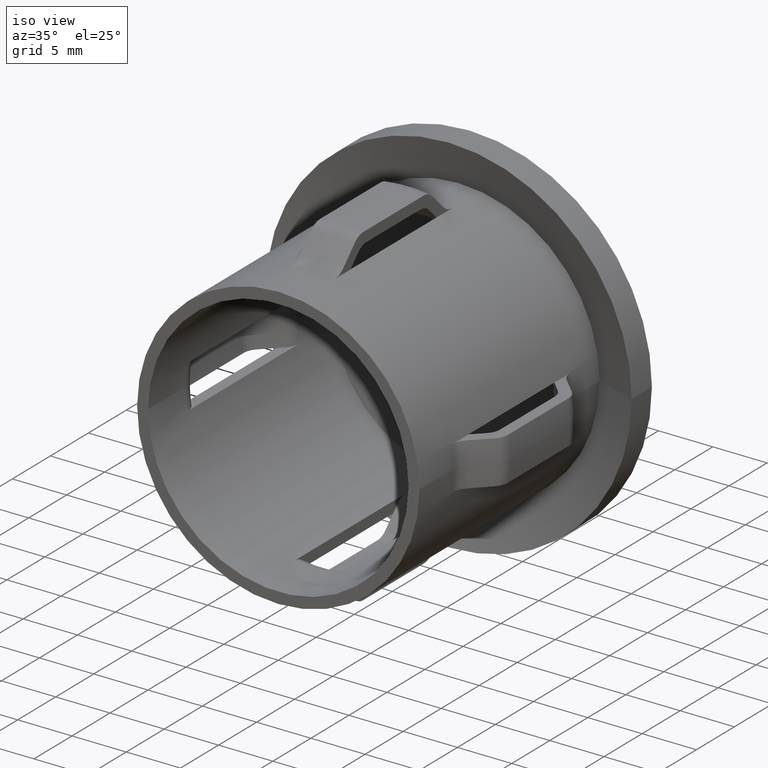
[diagram: clean part render]
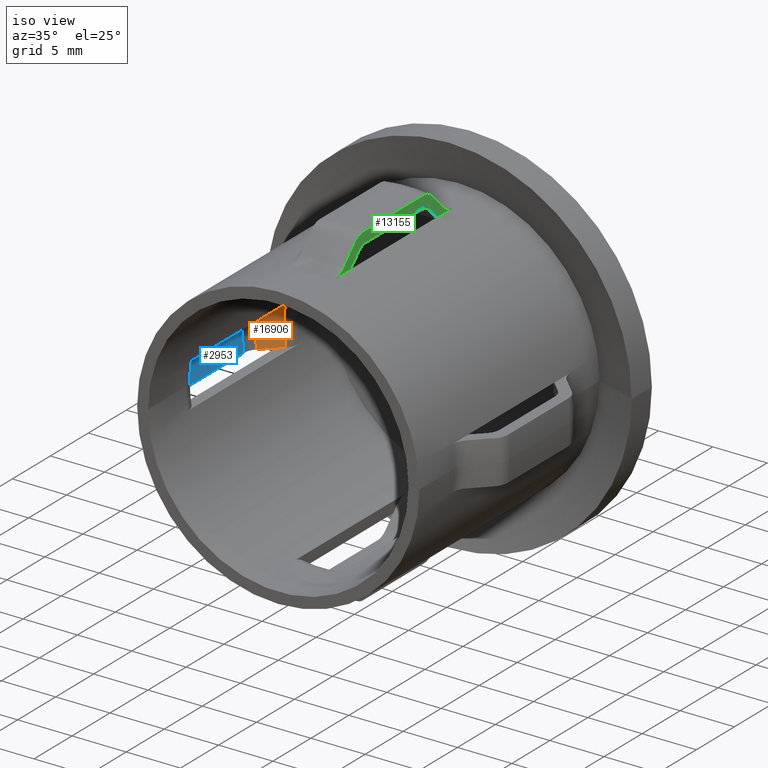
[diagram: same view with three faces highlighted in distinct colors, each labeled with its STEP entity id]
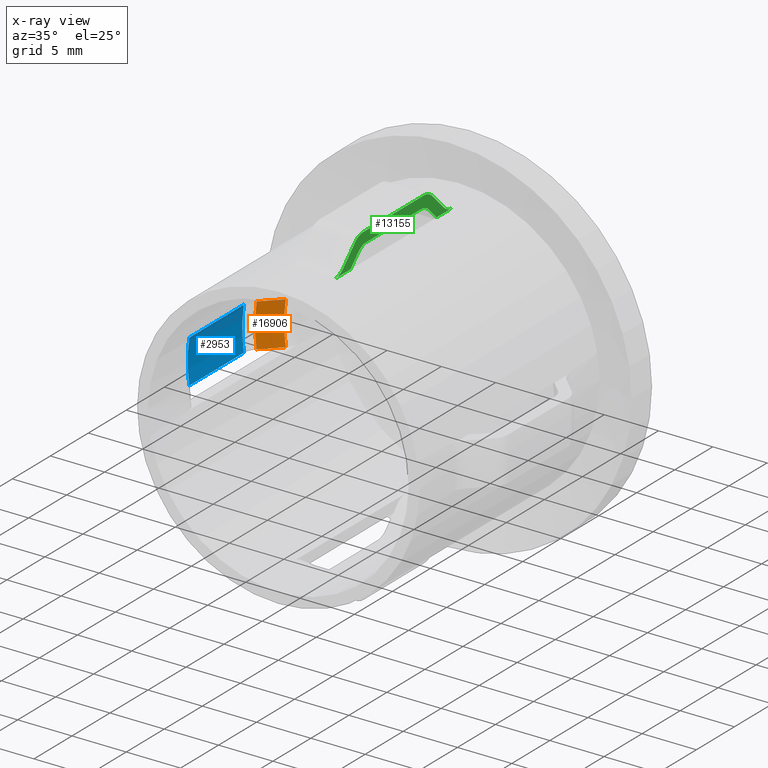
[diagram: x-ray of the same camera — body ghosted, the three highlighted faces saturated]
A machine part, iso view with three faces highlighted in distinct colors.
The next image is the same camera in x-ray (body ghosted, the three faces saturated) — at least one of them is partly hidden behind the body in this view.
Their STEP definitions:

[orange] entity #16906 — the highlighted conical surface has half-angle 45 deg.
#194 = EDGE_CURVE ( 'NONE', #17470, #5149, #16551, .T. ) ;
#366 = CARTESIAN_POINT ( 'NONE',  ( -12.84523257866528200, 17.96446609406723400, 1.999999999999995800 ) ) ;
#535 = CARTESIAN_POINT ( 'NONE',  ( -12.27750688706569300, 18.52512626584714200, -2.000000000000004400 ) ) ;
#820 = CARTESIAN_POINT ( 'NONE',  ( -12.84523257866528200, 17.96446609406723400, 1.999999999999995800 ) ) ;
#1080 = CARTESIAN_POINT ( 'NONE',  ( -13.86717701801987700, 16.95380592228752500, -2.000000000000005300 ) ) ;
#1222 = B_SPLINE_CURVE_WITH_KNOTS ( 'NONE', 3,
 ( #10139, #6054, #14100, #11375, #12747, #5935, #4810 ),
 .UNSPECIFIED., .F., .F.,
 ( 4, 3, 4 ),
 ( 0.002530001530085721900, 0.003724026586386598600, 0.003967291536168689700 ),
 .UNSPECIFIED. ) ;
#1568 = VERTEX_POINT ( 'NONE', #366 ) ;
#1770 = EDGE_CURVE ( 'NONE', #2885, #7765, #6370, .T. ) ;
#2061 = CARTESIAN_POINT ( 'NONE',  ( -12.58009118810099700, 18.22640723870335600, 1.999999999999996200 ) ) ;
#2209 = CARTESIAN_POINT ( 'NONE',  ( -12.42881685383938400, 18.37578480683090000, -2.000000000000004400 ) ) ;
#2258 = CARTESIAN_POINT ( 'NONE',  ( -12.42881685383938600, 18.37578480683090000, 1.999999999999996200 ) ) ;
#2387 = CARTESIAN_POINT ( 'NONE',  ( -2.026104711296577600E-014, 18.52512626584712400, 0.0000000000000000000 ) ) ;
#2885 = VERTEX_POINT ( 'NONE', #15490 ) ;
#2899 = CARTESIAN_POINT ( 'NONE',  ( -2.482551619496989100E-014, 16.95380592228748600, 0.0000000000000000000 ) ) ;
#3326 = CARTESIAN_POINT ( 'NONE',  ( -12.80726820539924500, 18.00197849439842600, -2.000000000000004900 ) ) ;
#3475 = B_SPLINE_CURVE_WITH_KNOTS ( 'NONE', 3,
 ( #12848, #2209, #10128, #3507, #16944, #3326, #4851 ),
 .UNSPECIFIED., .F., .F.,
 ( 4, 3, 4 ),
 ( 0.002988975465287536000, 0.003626766580090576700, 0.003786879688229011000 ),
 .UNSPECIFIED. ) ;
#3507 = CARTESIAN_POINT ( 'NONE',  ( -12.73133350302073600, 18.07699726713561000, -2.000000000000004400 ) ) ;
#3934 = CARTESIAN_POINT ( 'NONE',  ( -2.026104711296577600E-014, 18.52512626584712400, 0.0000000000000000000 ) ) ;
#3993 = DIRECTION ( 'NONE',  ( -2.904862207577519400E-015, -1.000000000000000000, -0.0000000000000000000 ) ) ;
#4005 = ORIENTED_EDGE ( 'NONE', *, *, #11197, .T. ) ;
#4116 = VERTEX_POINT ( 'NONE', #5881 ) ;
#4259 = DIRECTION ( 'NONE',  ( 1.000000000000000000, -2.971549014321320600E-015, 0.0000000000000000000 ) ) ;
#4810 = CARTESIAN_POINT ( 'NONE',  ( -13.86717701801987700, 16.95380592228752500, 1.999999999999995300 ) ) ;
#4840 = ORIENTED_EDGE ( 'NONE', *, *, #15877, .F. ) ;
#4851 = CARTESIAN_POINT ( 'NONE',  ( -12.84523257866528000, 17.96446609406721300, -2.000000000000004900 ) ) ;
#5149 = VERTEX_POINT ( 'NONE', #1080 ) ;
#5155 = CARTESIAN_POINT ( 'NONE',  ( -13.41135304348315100, 17.40486732174362300, -2.000000000000004900 ) ) ;
#5216 = CARTESIAN_POINT ( 'NONE',  ( -13.80954453019373000, 17.01084819587601900, -2.000000000000005300 ) ) ;
#5798 = ORIENTED_EDGE ( 'NONE', *, *, #194, .F. ) ;
#5881 = CARTESIAN_POINT ( 'NONE',  ( -13.86717701801987700, 16.95380592228752500, 1.999999999999995300 ) ) ;
#5935 = CARTESIAN_POINT ( 'NONE',  ( -13.80954453019373000, 17.01084819587601900, 1.999999999999995300 ) ) ;
#6054 = CARTESIAN_POINT ( 'NONE',  ( -13.12834731919544300, 17.68472188725505500, 1.999999999999995800 ) ) ;
#6258 = ORIENTED_EDGE ( 'NONE', *, *, #1770, .F. ) ;
#6319 = B_SPLINE_CURVE_WITH_KNOTS ( 'NONE', 3,
 ( #11589, #2258, #2061, #17186, #9060, #17128, #820 ),
 .UNSPECIFIED., .F., .F.,
 ( 4, 3, 4 ),
 ( 0.002988975465287537300, 0.003626766580090578500, 0.003786879688228994600 ),
 .UNSPECIFIED. ) ;
#6370 = CIRCLE ( 'NONE', #13612, 12.43933982822020200 ) ;
#6764 = AXIS2_PLACEMENT_3D ( 'NONE', #2899, #12378, #4259 ) ;
#7085 = CARTESIAN_POINT ( 'NONE',  ( -12.84523257866528000, 17.96446609406721300, -2.000000000000004900 ) ) ;
#7765 = VERTEX_POINT ( 'NONE', #535 ) ;
#7875 = EDGE_CURVE ( 'NONE', #2885, #1568, #6319, .T. ) ;
#8179 = ORIENTED_EDGE ( 'NONE', *, *, #7875, .T. ) ;
#9060 = CARTESIAN_POINT ( 'NONE',  ( -12.76930186428880800, 18.03948890328554100, 1.999999999999996200 ) ) ;
#10128 = CARTESIAN_POINT ( 'NONE',  ( -12.58009118810099600, 18.22640723870335600, -2.000000000000004400 ) ) ;
#10139 = CARTESIAN_POINT ( 'NONE',  ( -12.84523257866528200, 17.96446609406723400, 1.999999999999995800 ) ) ;
#10311 = ORIENTED_EDGE ( 'NONE', *, *, #15705, .T. ) ;
#10408 = CIRCLE ( 'NONE', #6764, 14.01066017177984200 ) ;
#10833 = DIRECTION ( 'NONE',  ( 1.000000000000000000, -2.789092508014564200E-015, 0.0000000000000000000 ) ) ;
#11197 = EDGE_CURVE ( 'NONE', #4116, #5149, #10408, .T. ) ;
#11375 = CARTESIAN_POINT ( 'NONE',  ( -13.69426855038495600, 17.12492162432191700, 1.999999999999995800 ) ) ;
#11589 = CARTESIAN_POINT ( 'NONE',  ( -12.27750688706569300, 18.52512626584714200, 1.999999999999996200 ) ) ;
#11684 = EDGE_LOOP ( 'NONE', ( #6258, #8179, #10311, #4005, #5798, #4840 ) ) ;
#12378 = DIRECTION ( 'NONE',  ( -2.904862207577519400E-015, -1.000000000000000000, -0.0000000000000000000 ) ) ;
#12536 = CONICAL_SURFACE ( 'NONE', #17237, 12.43933982822020200, 0.7853981633974482800 ) ;
#12747 = CARTESIAN_POINT ( 'NONE',  ( -13.75190841990096000, 17.06788680976665500, 1.999999999999995800 ) ) ;
#12848 = CARTESIAN_POINT ( 'NONE',  ( -12.27750688706569300, 18.52512626584714200, -2.000000000000004400 ) ) ;
#13143 = CARTESIAN_POINT ( 'NONE',  ( -12.84523257866528000, 17.96446609406721300, -2.000000000000004900 ) ) ;
#13147 = DIRECTION ( 'NONE',  ( -2.904862207577519400E-015, -1.000000000000000000, -0.0000000000000000000 ) ) ;
#13388 = CARTESIAN_POINT ( 'NONE',  ( -13.75190841990096200, 17.06788680976665200, -2.000000000000004900 ) ) ;
#13612 = AXIS2_PLACEMENT_3D ( 'NONE', #2387, #13147, #14571 ) ;
#14100 = CARTESIAN_POINT ( 'NONE',  ( -13.41135304348314600, 17.40486732174363000, 1.999999999999995800 ) ) ;
#14571 = DIRECTION ( 'NONE',  ( 1.000000000000000000, -2.789092508014564200E-015, 0.0000000000000000000 ) ) ;
#14623 = CARTESIAN_POINT ( 'NONE',  ( -13.69426855038495800, 17.12492162432191400, -2.000000000000004900 ) ) ;
#14754 = CARTESIAN_POINT ( 'NONE',  ( -13.12834731919545200, 17.68472188725504800, -2.000000000000004900 ) ) ;
#15490 = CARTESIAN_POINT ( 'NONE',  ( -12.27750688706569300, 18.52512626584714200, 1.999999999999996200 ) ) ;
#15705 = EDGE_CURVE ( 'NONE', #1568, #4116, #1222, .T. ) ;
#15877 = EDGE_CURVE ( 'NONE', #7765, #17470, #3475, .T. ) ;
#15989 = CARTESIAN_POINT ( 'NONE',  ( -13.86717701801987700, 16.95380592228752500, -2.000000000000005300 ) ) ;
#16151 = FACE_OUTER_BOUND ( 'NONE', #11684, .T. ) ;
#16551 = B_SPLINE_CURVE_WITH_KNOTS ( 'NONE', 3,
 ( #13143, #14754, #5155, #14623, #13388, #5216, #15989 ),
 .UNSPECIFIED., .F., .F.,
 ( 4, 3, 4 ),
 ( 0.002530001530085737900, 0.003724026586386602100, 0.003967291536168688000 ),
 .UNSPECIFIED. ) ;
#16906 = ADVANCED_FACE ( 'NONE', ( #16151 ), #12536, .F. ) ;
#16944 = CARTESIAN_POINT ( 'NONE',  ( -12.76930186428881200, 18.03948890328553700, -2.000000000000004400 ) ) ;
#17128 = CARTESIAN_POINT ( 'NONE',  ( -12.80726820539923800, 18.00197849439843300, 1.999999999999995800 ) ) ;
#17186 = CARTESIAN_POINT ( 'NONE',  ( -12.73133350302073700, 18.07699726713561000, 1.999999999999996200 ) ) ;
#17237 = AXIS2_PLACEMENT_3D ( 'NONE', #3934, #3993, #10833 ) ;
#17470 = VERTEX_POINT ( 'NONE', #7085 ) ;

[blue] entity #2953 — the highlighted cylindrical surface (partial cylindrical patch) has radius 14.45 mm, axis along (-0, -1, -0).
#222 = EDGE_LOOP ( 'NONE', ( #9202, #13239, #7294, #16417 ) ) ;
#1392 = AXIS2_PLACEMENT_3D ( 'NONE', #15958, #15724, #17103 ) ;
#2552 = AXIS2_PLACEMENT_3D ( 'NONE', #8727, #11519, #10106 ) ;
#2655 = VECTOR ( 'NONE', #7908, 1000.000000000000000 ) ;
#2953 = ADVANCED_FACE ( 'NONE', ( #10046 ), #6447, .F. ) ;
#3343 = CARTESIAN_POINT ( 'NONE',  ( -14.31092240213751600, 15.89314575050771000, -2.000000000000005300 ) ) ;
#4282 = LINE ( 'NONE', #16503, #16774 ) ;
#5173 = VERTEX_POINT ( 'NONE', #6464 ) ;
#6159 = CIRCLE ( 'NONE', #2552, 14.45000000000004500 ) ;
#6447 = CYLINDRICAL_SURFACE ( 'NONE', #1392, 14.45000000000003700 ) ;
#6464 = CARTESIAN_POINT ( 'NONE',  ( -14.31092240213755100, 8.721572875253821500, -2.000000000000005300 ) ) ;
#6965 = DIRECTION ( 'NONE',  ( -2.904862207577519400E-015, -1.000000000000000000, -0.0000000000000000000 ) ) ;
#7294 = ORIENTED_EDGE ( 'NONE', *, *, #11286, .T. ) ;
#7840 = CARTESIAN_POINT ( 'NONE',  ( -14.31092240213750300, 25.50000000000003900, 1.999999999999995300 ) ) ;
#7908 = DIRECTION ( 'NONE',  ( -2.904862207577519400E-015, -1.000000000000000000, -0.0000000000000000000 ) ) ;
#8505 = CARTESIAN_POINT ( 'NONE',  ( -14.31092240213751800, 15.89314575050771000, 1.999999999999995300 ) ) ;
#8727 = CARTESIAN_POINT ( 'NONE',  ( -4.873901885726859700E-014, 8.721572875253858800, 0.0000000000000000000 ) ) ;
#8902 = CIRCLE ( 'NONE', #11738, 14.45000000000002400 ) ;
#9141 = VERTEX_POINT ( 'NONE', #3343 ) ;
#9202 = ORIENTED_EDGE ( 'NONE', *, *, #10053, .F. ) ;
#9282 = EDGE_CURVE ( 'NONE', #9874, #10056, #12804, .T. ) ;
#9874 = VERTEX_POINT ( 'NONE', #8505 ) ;
#10046 = FACE_OUTER_BOUND ( 'NONE', #222, .T. ) ;
#10053 = EDGE_CURVE ( 'NONE', #9874, #9141, #8902, .T. ) ;
#10056 = VERTEX_POINT ( 'NONE', #14678 ) ;
#10106 = DIRECTION ( 'NONE',  ( 1.000000000000000000, -2.881201620999532200E-015, 0.0000000000000000000 ) ) ;
#10195 = EDGE_CURVE ( 'NONE', #9141, #5173, #4282, .T. ) ;
#11286 = EDGE_CURVE ( 'NONE', #10056, #5173, #6159, .T. ) ;
#11519 = DIRECTION ( 'NONE',  ( -2.904862207577519400E-015, -1.000000000000000000, -0.0000000000000000000 ) ) ;
#11738 = AXIS2_PLACEMENT_3D ( 'NONE', #13197, #13126, #13371 ) ;
#12804 = LINE ( 'NONE', #7840, #2655 ) ;
#13126 = DIRECTION ( 'NONE',  ( -2.904862207577519400E-015, -1.000000000000000000, -0.0000000000000000000 ) ) ;
#13197 = CARTESIAN_POINT ( 'NONE',  ( -2.790658784305576600E-014, 15.89314575050766700, 0.0000000000000000000 ) ) ;
#13239 = ORIENTED_EDGE ( 'NONE', *, *, #9282, .T. ) ;
#13371 = DIRECTION ( 'NONE',  ( 1.000000000000000000, -2.881201620999536500E-015, 0.0000000000000000000 ) ) ;
#14678 = CARTESIAN_POINT ( 'NONE',  ( -14.31092240213755300, 8.721572875253821500, 1.999999999999995300 ) ) ;
#15724 = DIRECTION ( 'NONE',  ( -2.904862207577519400E-015, -1.000000000000000000, -0.0000000000000000000 ) ) ;
#15958 = CARTESIAN_POINT ( 'NONE',  ( 0.0000000000000000000, 25.50000000000000000, 0.0000000000000000000 ) ) ;
#16417 = ORIENTED_EDGE ( 'NONE', *, *, #10195, .F. ) ;
#16503 = CARTESIAN_POINT ( 'NONE',  ( -14.31092240213750200, 25.50000000000003900, -2.000000000000005300 ) ) ;
#16774 = VECTOR ( 'NONE', #6965, 1000.000000000000000 ) ;
#17103 = DIRECTION ( 'NONE',  ( 1.000000000000000000, -2.881201620999533800E-015, 0.0000000000000000000 ) ) ;

[green] entity #13155 — the highlighted planar face has unit normal (-1, 0, 0).
#39 = B_SPLINE_CURVE_WITH_KNOTS ( 'NONE', 3,
 ( #1986, #14164, #8653, #6120, #16798, #16912 ),
 .UNSPECIFIED., .F., .F.,
 ( 4, 2, 4 ),
 ( 0.008583765177969679100, 0.009170183347040526700, 0.009756601516111374300 ),
 .UNSPECIFIED. ) ;
#90 = CARTESIAN_POINT ( 'NONE',  ( 2.000000000000001800, 7.965720185533344400, 14.11947497109350500 ) ) ;
#188 = CARTESIAN_POINT ( 'NONE',  ( 1.999999999999998700, 20.00000000000000000, -3.907033898490178900E-016 ) ) ;
#248 = CARTESIAN_POINT ( 'NONE',  ( 2.000000000000001800, 8.525158145679075300, 14.30113100664003600 ) ) ;
#288 = CARTESIAN_POINT ( 'NONE',  ( 2.000000000000001300, 17.39168756274511900, 13.42465701800259800 ) ) ;
#347 = CARTESIAN_POINT ( 'NONE',  ( 2.000000000000001300, 17.72853347514812600, 13.08396850166098000 ) ) ;
#501 = CARTESIAN_POINT ( 'NONE',  ( 2.000000000000000900, 16.28801097332248600, 14.27077782130577100 ) ) ;
#683 = CARTESIAN_POINT ( 'NONE',  ( 2.000000000000001300, 25.50000000000000000, 14.31092240213750200 ) ) ;
#753 = CARTESIAN_POINT ( 'NONE',  ( 2.000000000000001300, 7.246699141100939400, 14.87682488949366900 ) ) ;
#826 = CARTESIAN_POINT ( 'NONE',  ( 2.000000000000001800, 19.07677302967446000, 13.15070901816539200 ) ) ;
#887 = VECTOR ( 'NONE', #10321, 1000.000000000000000 ) ;
#1007 = EDGE_CURVE ( 'NONE', #12107, #17554, #16367, .T. ) ;
#1040 = CARTESIAN_POINT ( 'NONE',  ( 2.000000000000000900, 4.810650516900648400, 12.84523257866516300 ) ) ;
#1365 = VERTEX_POINT ( 'NONE', #11147 ) ;
#1569 = DIRECTION ( 'NONE',  ( -1.000000000000000000, 2.449293598294745400E-017, 1.953516949245091400E-016 ) ) ;
#1675 = VERTEX_POINT ( 'NONE', #10249 ) ;
#1708 = LINE ( 'NONE', #683, #4057 ) ;
#1719 = CARTESIAN_POINT ( 'NONE',  ( 2.000000000000000900, 6.198839295954318400, 13.81904478488033300 ) ) ;
#1738 = ORIENTED_EDGE ( 'NONE', *, *, #10730, .T. ) ;
#1857 = CARTESIAN_POINT ( 'NONE',  ( 2.000000000000000900, 6.810020047623344100, 13.00690128636736100 ) ) ;
#1874 = B_SPLINE_CURVE_WITH_KNOTS ( 'NONE', 3,
 ( #3116, #12597, #15381, #1857, #6117, #8775, #16967 ),
 .UNSPECIFIED., .F., .F.,
 ( 4, 3, 4 ),
 ( 0.003496734235046447200, 0.003724027721604874800, 0.004934023718832859600 ),
 .UNSPECIFIED. ) ;
#1986 = CARTESIAN_POINT ( 'NONE',  ( 2.000000000000001800, 17.36801948466058200, 14.87682488949364100 ) ) ;
#2008 = CARTESIAN_POINT ( 'NONE',  ( 2.000000000000001300, 8.307359312880761200, 15.32000326370728200 ) ) ;
#2106 = AXIS2_PLACEMENT_3D ( 'NONE', #188, #1569, #6896 ) ;
#2126 = EDGE_CURVE ( 'NONE', #14779, #3420, #17435, .T. ) ;
#2127 = CARTESIAN_POINT ( 'NONE',  ( 2.000000000000001300, 20.00000000000000000, 12.84523257866519700 ) ) ;
#2280 = CARTESIAN_POINT ( 'NONE',  ( 2.000000000000000900, 5.675378797541296400, 13.28968980143579300 ) ) ;
#2411 = CARTESIAN_POINT ( 'NONE',  ( 2.000000000000000900, 4.614718625761442500, 12.84523257866519700 ) ) ;
#2545 = ORIENTED_EDGE ( 'NONE', *, *, #12200, .T. ) ;
#2553 = ORIENTED_EDGE ( 'NONE', *, *, #1007, .F. ) ;
#2742 = CARTESIAN_POINT ( 'NONE',  ( 1.999999999999952700, 8.721572875253821500, 14.31092240213750200 ) ) ;
#2820 = EDGE_CURVE ( 'NONE', #4113, #9749, #1874, .T. ) ;
#2860 = CARTESIAN_POINT ( 'NONE',  ( 2.000000000000001300, 7.660912703473165700, 13.86717701802054300 ) ) ;
#3002 = CARTESIAN_POINT ( 'NONE',  ( 2.000000000000001800, 20.00000000000000000, 15.32000326370728200 ) ) ;
#3012 = CARTESIAN_POINT ( 'NONE',  ( 2.000000000000001300, 17.61053919563339700, 13.20330881289675100 ) ) ;
#3116 = CARTESIAN_POINT ( 'NONE',  ( 2.000000000000000900, 6.650252531694226500, 12.84523257866519700 ) ) ;
#3158 = CARTESIAN_POINT ( 'NONE',  ( 2.000000000000001300, 16.09113098917531600, 14.31092240213748400 ) ) ;
#3293 = CARTESIAN_POINT ( 'NONE',  ( 2.000000000000001300, 20.00000000000000000, 12.84523257866519700 ) ) ;
#3322 = CARTESIAN_POINT ( 'NONE',  ( 2.000000000000001300, 18.93933982822020900, 13.28968980143576000 ) ) ;
#3420 = VERTEX_POINT ( 'NONE', #8746 ) ;
#3437 = CARTESIAN_POINT ( 'NONE',  ( 2.000000000000001300, 19.24306972425966200, 13.03746732907451300 ) ) ;
#3566 = CARTESIAN_POINT ( 'NONE',  ( 2.000000000000001300, 20.00000000000000000, 12.84523257866519700 ) ) ;
#3730 = CARTESIAN_POINT ( 'NONE',  ( 2.000000000000001300, 7.246699141100939400, 14.87682488949366900 ) ) ;
#3774 = CARTESIAN_POINT ( 'NONE',  ( 2.000000000000000900, 5.010271206375065800, 12.88563247296317500 ) ) ;
#4057 = VECTOR ( 'NONE', #7421, 1000.000000000000000 ) ;
#4113 = VERTEX_POINT ( 'NONE', #14097 ) ;
#4188 = ORIENTED_EDGE ( 'NONE', *, *, #15499, .T. ) ;
#4279 = CARTESIAN_POINT ( 'NONE',  ( 2.000000000000001800, 17.36801948466058200, 14.87682488949364100 ) ) ;
#4332 = ORIENTED_EDGE ( 'NONE', *, *, #8947, .T. ) ;
#4380 = CARTESIAN_POINT ( 'NONE',  ( 2.000000000000001300, 17.96446609406724800, 12.84523257866519700 ) ) ;
#4593 = CARTESIAN_POINT ( 'NONE',  ( 2.000000000000001300, 16.64665653109624400, 14.10965804058213600 ) ) ;
#4701 = CARTESIAN_POINT ( 'NONE',  ( 2.000000000000001300, 16.95380592228747900, 13.86717701801984700 ) ) ;
#4736 = CARTESIAN_POINT ( 'NONE',  ( 2.000000000000001300, 20.00000000000000000, 12.84523257866519700 ) ) ;
#4846 = CARTESIAN_POINT ( 'NONE',  ( 2.000000000000001300, 19.61076877829982800, 12.89389560420856100 ) ) ;
#4966 = LINE ( 'NONE', #4736, #5172 ) ;
#5172 = VECTOR ( 'NONE', #8800, 1000.000000000000000 ) ;
#5347 = EDGE_LOOP ( 'NONE', ( #1738, #4188, #16364, #4332, #5722, #6768, #2545, #13288, #9675, #15864, #7342, #16881, #17497, #2553 ) ) ;
#5654 = CARTESIAN_POINT ( 'NONE',  ( 2.000000000000001800, 8.237601868574277100, 14.23333735546590600 ) ) ;
#5695 = CARTESIAN_POINT ( 'NONE',  ( 1.999999999999952700, 8.721572875253821500, 14.31092240213750200 ) ) ;
#5698 = CARTESIAN_POINT ( 'NONE',  ( 2.000000000000001800, 8.622614765165632600, 14.31092240213750300 ) ) ;
#5722 = ORIENTED_EDGE ( 'NONE', *, *, #11311, .T. ) ;
#5845 = CARTESIAN_POINT ( 'NONE',  ( 2.000000000000001800, 17.36801948466058200, 14.87682488949364100 ) ) ;
#6091 = CARTESIAN_POINT ( 'NONE',  ( 2.000000000000001800, 19.80250969823537600, 12.85519905144160200 ) ) ;
#6117 = CARTESIAN_POINT ( 'NONE',  ( 2.000000000000000900, 7.093548089543283200, 13.29376154875926900 ) ) ;
#6120 = CARTESIAN_POINT ( 'NONE',  ( 2.000000000000001800, 16.69996334954513300, 15.28077856855881000 ) ) ;
#6327 = VERTEX_POINT ( 'NONE', #5695 ) ;
#6347 = VERTEX_POINT ( 'NONE', #2008 ) ;
#6533 = CARTESIAN_POINT ( 'NONE',  ( 2.000000000000001300, 15.89314575050766000, 14.31092240213748700 ) ) ;
#6768 = ORIENTED_EDGE ( 'NONE', *, *, #10955, .T. ) ;
#6839 = PLANE ( 'NONE',  #2106 ) ;
#6896 = DIRECTION ( 'NONE',  ( 1.953516949245091400E-016, 0.0000000000000000000, 1.000000000000000000 ) ) ;
#7036 = CARTESIAN_POINT ( 'NONE',  ( 2.000000000000001300, 18.41587932980719000, 13.81904478488030300 ) ) ;
#7141 = CARTESIAN_POINT ( 'NONE',  ( 2.000000000000001800, 17.89207268786339700, 14.34805718511838900 ) ) ;
#7342 = ORIENTED_EDGE ( 'NONE', *, *, #17527, .T. ) ;
#7421 = DIRECTION ( 'NONE',  ( 2.904862207577519400E-015, 1.000000000000000000, 0.0000000000000000000 ) ) ;
#7499 = CARTESIAN_POINT ( 'NONE',  ( 2.000000000000001300, 7.915846899792081900, 15.28112922831983600 ) ) ;
#7624 = CARTESIAN_POINT ( 'NONE',  ( 2.000000000000001800, 16.30735931288072000, 15.32000326370728200 ) ) ;
#7849 = VERTEX_POINT ( 'NONE', #7624 ) ;
#7948 = LINE ( 'NONE', #3002, #17060 ) ;
#7954 = B_SPLINE_CURVE_WITH_KNOTS ( 'NONE', 3,
 ( #14656, #11878, #15842, #17390, #13291, #3774, #1040, #2411 ),
 .UNSPECIFIED., .F., .F.,
 ( 4, 2, 2, 4 ),
 ( 0.008397984264211464200, 0.008691164170528380800, 0.008984344076845297500, 0.009570703889479127400 ),
 .UNSPECIFIED. ) ;
#8193 = CARTESIAN_POINT ( 'NONE',  ( 2.000000000000001300, 7.799728573263398500, 14.00742921034004800 ) ) ;
#8194 = CARTESIAN_POINT ( 'NONE',  ( 2.000000000000001300, 6.722645937898120000, 14.34805718511841700 ) ) ;
#8335 = EDGE_CURVE ( 'NONE', #9710, #7849, #39, .T. ) ;
#8353 = CARTESIAN_POINT ( 'NONE',  ( 2.000000000000001300, 8.333151257704635400, 14.26259556149498100 ) ) ;
#8653 = CARTESIAN_POINT ( 'NONE',  ( 2.000000000000002200, 17.06458155848870100, 15.12817155311840800 ) ) ;
#8745 = FACE_OUTER_BOUND ( 'NONE', #5347, .T. ) ;
#8746 = CARTESIAN_POINT ( 'NONE',  ( 2.000000000000001300, 16.95380592228747900, 13.86717701801984700 ) ) ;
#8775 = CARTESIAN_POINT ( 'NONE',  ( 2.000000000000001300, 7.377185320262207700, 13.58051391835340600 ) ) ;
#8800 = DIRECTION ( 'NONE',  ( -2.449293598294745400E-017, -1.000000000000000000, -0.0000000000000000000 ) ) ;
#8842 = CARTESIAN_POINT ( 'NONE',  ( 2.000000000000001300, 7.384274225619329000, 15.01563763059596300 ) ) ;
#8947 = EDGE_CURVE ( 'NONE', #7849, #6347, #7948, .T. ) ;
#9675 = ORIENTED_EDGE ( 'NONE', *, *, #2820, .T. ) ;
#9710 = VERTEX_POINT ( 'NONE', #4279 ) ;
#9749 = VERTEX_POINT ( 'NONE', #2860 ) ;
#10206 = B_SPLINE_CURVE_WITH_KNOTS ( 'NONE', 3,
 ( #16309, #8193, #90, #5654, #8353, #248, #5698, #2742 ),
 .UNSPECIFIED., .F., .F.,
 ( 4, 2, 2, 4 ),
 ( 0.009240012300329680100, 0.009826964011137015500, 0.01012043986654068100, 0.01041391572194434700 ),
 .UNSPECIFIED. ) ;
#10249 = CARTESIAN_POINT ( 'NONE',  ( 2.000000000000000900, 4.614718625761442500, 12.84523257866519700 ) ) ;
#10321 = DIRECTION ( 'NONE',  ( -2.449293598294745400E-017, -1.000000000000000000, -0.0000000000000000000 ) ) ;
#10730 = EDGE_CURVE ( 'NONE', #12107, #1365, #16949, .T. ) ;
#10889 = VERTEX_POINT ( 'NONE', #2280 ) ;
#10955 = EDGE_CURVE ( 'NONE', #12611, #10889, #11395, .T. ) ;
#11121 = CARTESIAN_POINT ( 'NONE',  ( 2.000000000000001300, 17.17277364049887100, 13.64594364914720100 ) ) ;
#11147 = CARTESIAN_POINT ( 'NONE',  ( 2.000000000000001300, 18.93933982822020900, 13.28968980143576000 ) ) ;
#11311 = EDGE_CURVE ( 'NONE', #6347, #12611, #11619, .T. ) ;
#11395 = B_SPLINE_CURVE_WITH_KNOTS ( 'NONE', 3,
 ( #14960, #8194, #1719, #16530 ),
 .UNSPECIFIED., .F., .F.,
 ( 4, 4 ),
 ( 0.003028707683299489700, 0.005262100464657738100 ),
 .UNSPECIFIED. ) ;
#11619 = B_SPLINE_CURVE_WITH_KNOTS ( 'NONE', 3,
 ( #15561, #16920, #7499, #16985, #8842, #753 ),
 .UNSPECIFIED., .F., .F.,
 ( 4, 2, 4 ),
 ( 0.008550654904768256400, 0.009136735463215302900, 0.009722816021662347700 ),
 .UNSPECIFIED. ) ;
#11878 = CARTESIAN_POINT ( 'NONE',  ( 2.000000000000001300, 5.606654887588473600, 13.22019201826855600 ) ) ;
#12107 = VERTEX_POINT ( 'NONE', #3293 ) ;
#12200 = EDGE_CURVE ( 'NONE', #10889, #1675, #7954, .T. ) ;
#12317 = CARTESIAN_POINT ( 'NONE',  ( 2.000000000000001300, 16.95380592228747900, 13.86717701801984700 ) ) ;
#12597 = CARTESIAN_POINT ( 'NONE',  ( 2.000000000000000900, 6.703504406182554800, 12.89912606514811900 ) ) ;
#12611 = VERTEX_POINT ( 'NONE', #3730 ) ;
#12640 = EDGE_CURVE ( 'NONE', #3420, #17554, #16090, .T. ) ;
#13054 = CARTESIAN_POINT ( 'NONE',  ( 2.000000000000001300, 17.96446609406724800, 12.84523257866519700 ) ) ;
#13155 = ADVANCED_FACE ( 'NONE', ( #8745 ), #6839, .F. ) ;
#13159 = EDGE_CURVE ( 'NONE', #9749, #6327, #10206, .T. ) ;
#13288 = ORIENTED_EDGE ( 'NONE', *, *, #13320, .F. ) ;
#13291 = CARTESIAN_POINT ( 'NONE',  ( 2.000000000000000900, 5.281332809963305200, 12.99975737408614900 ) ) ;
#13320 = EDGE_CURVE ( 'NONE', #4113, #1675, #4966, .T. ) ;
#13670 = DIRECTION ( 'NONE',  ( -2.449293598294745400E-017, -1.000000000000000000, -0.0000000000000000000 ) ) ;
#13846 = CARTESIAN_POINT ( 'NONE',  ( 2.000000000000001300, 17.84650962461671500, 12.96461026166673700 ) ) ;
#14097 = CARTESIAN_POINT ( 'NONE',  ( 2.000000000000000900, 6.650252531694226500, 12.84523257866519700 ) ) ;
#14164 = CARTESIAN_POINT ( 'NONE',  ( 2.000000000000001800, 17.22880374819318300, 15.01729304222103400 ) ) ;
#14219 = CARTESIAN_POINT ( 'NONE',  ( 2.000000000000001300, 16.88465229389256500, 13.93704617638048800 ) ) ;
#14656 = CARTESIAN_POINT ( 'NONE',  ( 2.000000000000000900, 5.675378797541296400, 13.28968980143579300 ) ) ;
#14670 = B_SPLINE_CURVE_WITH_KNOTS ( 'NONE', 3,
 ( #15167, #7036, #7141, #5845 ),
 .UNSPECIFIED., .F., .F.,
 ( 4, 4 ),
 ( 0.004956931541997256500, 0.007190321288002834600 ),
 .UNSPECIFIED. ) ;
#14779 = VERTEX_POINT ( 'NONE', #6533 ) ;
#14960 = CARTESIAN_POINT ( 'NONE',  ( 2.000000000000001300, 7.246699141100939400, 14.87682488949366900 ) ) ;
#15167 = CARTESIAN_POINT ( 'NONE',  ( 2.000000000000001300, 18.93933982822020900, 13.28968980143576000 ) ) ;
#15381 = CARTESIAN_POINT ( 'NONE',  ( 2.000000000000000900, 6.756760293801489700, 12.95301558655154000 ) ) ;
#15499 = EDGE_CURVE ( 'NONE', #1365, #9710, #14670, .T. ) ;
#15561 = CARTESIAN_POINT ( 'NONE',  ( 2.000000000000001300, 8.307359312880761200, 15.32000326370728200 ) ) ;
#15594 = CARTESIAN_POINT ( 'NONE',  ( 2.000000000000001300, 15.89314575050766000, 14.31092240213748700 ) ) ;
#15757 = CARTESIAN_POINT ( 'NONE',  ( 2.000000000000001300, 19.90174428158149000, 12.84523257866513300 ) ) ;
#15842 = CARTESIAN_POINT ( 'NONE',  ( 2.000000000000000900, 5.530083527049172600, 13.15650255920657800 ) ) ;
#15864 = ORIENTED_EDGE ( 'NONE', *, *, #13159, .T. ) ;
#16090 = B_SPLINE_CURVE_WITH_KNOTS ( 'NONE', 3,
 ( #12317, #11121, #288, #3012, #347, #13846, #4380 ),
 .UNSPECIFIED., .F., .F.,
 ( 4, 3, 4 ),
 ( 0.002790205647162736200, 0.003724025327172718300, 0.004227496002185462600 ),
 .UNSPECIFIED. ) ;
#16309 = CARTESIAN_POINT ( 'NONE',  ( 2.000000000000001300, 7.660912703473165700, 13.86717701802054300 ) ) ;
#16364 = ORIENTED_EDGE ( 'NONE', *, *, #8335, .T. ) ;
#16367 = LINE ( 'NONE', #3566, #887 ) ;
#16530 = CARTESIAN_POINT ( 'NONE',  ( 2.000000000000000900, 5.675378797541296400, 13.28968980143579300 ) ) ;
#16798 = CARTESIAN_POINT ( 'NONE',  ( 2.000000000000001800, 16.50310108553633600, 15.32000326370724800 ) ) ;
#16847 = CARTESIAN_POINT ( 'NONE',  ( 2.000000000000000900, 16.55881375434537300, 14.15718159842687000 ) ) ;
#16881 = ORIENTED_EDGE ( 'NONE', *, *, #2126, .T. ) ;
#16912 = CARTESIAN_POINT ( 'NONE',  ( 2.000000000000001800, 16.30735931288072000, 15.32000326370728200 ) ) ;
#16920 = CARTESIAN_POINT ( 'NONE',  ( 2.000000000000001800, 8.110587459736404300, 15.32000326370727100 ) ) ;
#16940 = CARTESIAN_POINT ( 'NONE',  ( 2.000000000000000900, 19.51712017956789000, 12.92256034160916700 ) ) ;
#16949 = B_SPLINE_CURVE_WITH_KNOTS ( 'NONE', 3,
 ( #2127, #15757, #6091, #4846, #16940, #3437, #826, #3322 ),
 .UNSPECIFIED., .F., .F.,
 ( 4, 2, 2, 4 ),
 ( 0.008528734479015941100, 0.008821882677126890700, 0.009115030875237838500, 0.009701327271459739300 ),
 .UNSPECIFIED. ) ;
#16961 = CARTESIAN_POINT ( 'NONE',  ( 2.000000000000001800, 16.80940154118206900, 13.99952814814298900 ) ) ;
#16967 = CARTESIAN_POINT ( 'NONE',  ( 2.000000000000001300, 7.660912703473165700, 13.86717701802054300 ) ) ;
#16985 = CARTESIAN_POINT ( 'NONE',  ( 2.000000000000001300, 7.550405543697128700, 15.12838975386727800 ) ) ;
#17060 = VECTOR ( 'NONE', #13670, 1000.000000000000000 ) ;
#17390 = CARTESIAN_POINT ( 'NONE',  ( 2.000000000000000900, 5.367228892842463000, 13.04631467399021000 ) ) ;
#17435 = B_SPLINE_CURVE_WITH_KNOTS ( 'NONE', 3,
 ( #15594, #3158, #501, #16847, #4593, #16961, #14219, #4701 ),
 .UNSPECIFIED., .F., .F.,
 ( 4, 2, 2, 4 ),
 ( 0.009165852679963885900, 0.009752612422987114900, 0.01004599229449872800, 0.01033937216601034200 ),
 .UNSPECIFIED. ) ;
#17497 = ORIENTED_EDGE ( 'NONE', *, *, #12640, .T. ) ;
#17527 = EDGE_CURVE ( 'NONE', #6327, #14779, #1708, .T. ) ;
#17554 = VERTEX_POINT ( 'NONE', #13054 ) ;